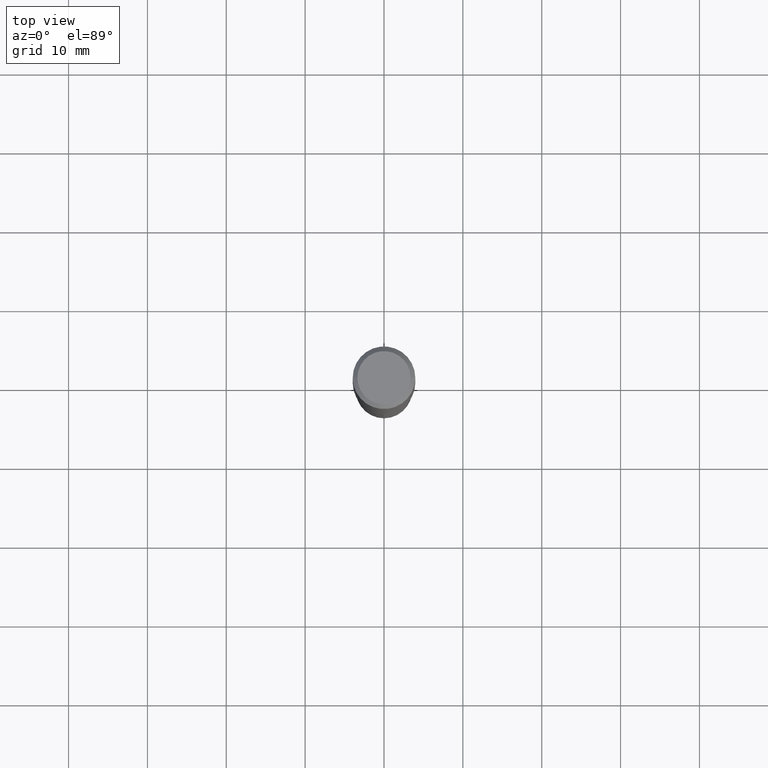
[diagram: clean part render]
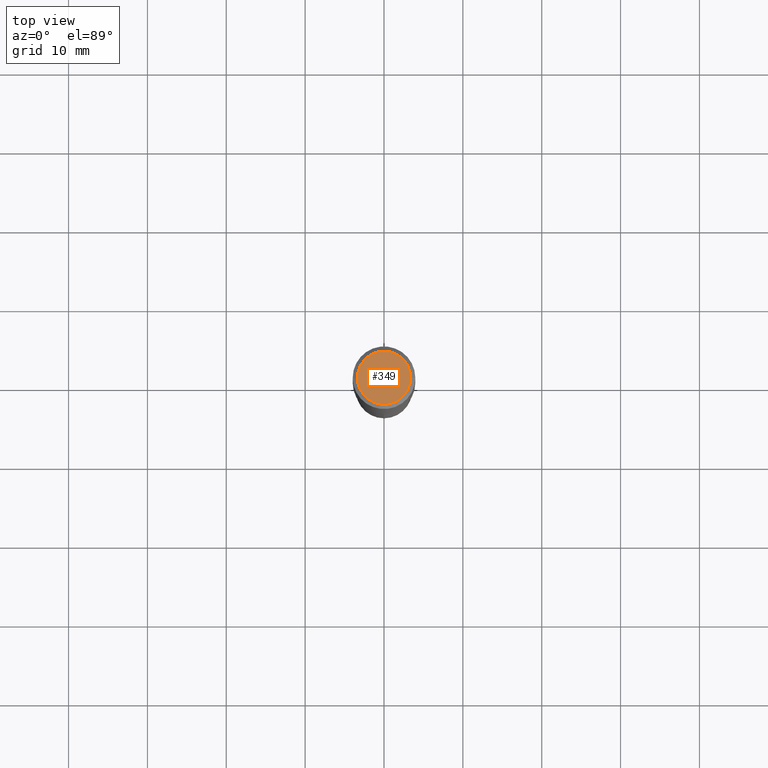
[diagram: same view with one face highlighted and labeled with its STEP entity id]
A machine part, top view. The second image highlights one B-rep face of the part: STEP entity #349.
In plain terms, the highlighted planar face has unit normal (0, -0, -1).
Its self-contained STEP definition (entity closure, byte-faithful):
#4 = CARTESIAN_POINT ( 'NONE',  ( -3.977515959410825406E-47, 5.678838639081919634E-33, 1.626484030117578921E-18 ) ) ;
#13 = EDGE_CURVE ( 'NONE', #448, #140, #337, .T. ) ;
#16 = AXIS2_PLACEMENT_3D ( 'NONE', #4, #491, #190 ) ;
#35 = DIRECTION ( 'NONE',  ( 1.000000000000000000, -6.982962677686268288E-15, 4.876286914311434227E-29 ) ) ;
#114 = PLANE ( 'NONE',  #16 ) ;
#140 = VERTEX_POINT ( 'NONE', #200 ) ;
#190 = DIRECTION ( 'NONE',  ( -1.000000000000000000, 6.982962677686265922E-15, -4.876176775795935793E-29 ) ) ;
#197 = AXIS2_PLACEMENT_3D ( 'NONE', #258, #373, #35 ) ;
#200 = CARTESIAN_POINT ( 'NONE',  ( 0.1328125000000000000, -1.032472148179985084E-15, 3.252968060242010686E-18 ) ) ;
#258 = CARTESIAN_POINT ( 'NONE',  ( -7.955031918821650812E-47, 1.135767727816383927E-32, 3.252968060235157842E-18 ) ) ;
#260 = ORIENTED_EDGE ( 'NONE', *, *, #13, .T. ) ;
#264 = DIRECTION ( 'NONE',  ( -2.445468806185136597E-29, 3.491481338843145583E-15, 1.000000000000000000 ) ) ;
#277 = EDGE_LOOP ( 'NONE', ( #260, #400 ) ) ;
#334 = FACE_OUTER_BOUND ( 'NONE', #277, .T. ) ;
#337 = CIRCLE ( 'NONE', #429, 0.1328125000000000000 ) ;
#349 = ADVANCED_FACE ( 'NONE', ( #334 ), #114, .F. ) ;
#353 = CARTESIAN_POINT ( 'NONE',  ( -0.1328125000000000000, 9.683405275697749214E-16, 3.252968060228529177E-18 ) ) ;
#373 = DIRECTION ( 'NONE',  ( -2.445468806185136597E-29, 3.491481338843145583E-15, 1.000000000000000000 ) ) ;
#378 = EDGE_CURVE ( 'NONE', #140, #448, #430, .T. ) ;
#385 = CARTESIAN_POINT ( 'NONE',  ( -7.955031918821650812E-47, 1.135767727816383927E-32, 3.252968060235157842E-18 ) ) ;
#400 = ORIENTED_EDGE ( 'NONE', *, *, #378, .T. ) ;
#429 = AXIS2_PLACEMENT_3D ( 'NONE', #385, #264, #432 ) ;
#430 = CIRCLE ( 'NONE', #197, 0.1328125000000000000 ) ;
#432 = DIRECTION ( 'NONE',  ( 1.000000000000000000, -6.982962677686268288E-15, 4.876286914311434227E-29 ) ) ;
#448 = VERTEX_POINT ( 'NONE', #353 ) ;
#491 = DIRECTION ( 'NONE',  ( 2.438088387897960049E-29, -3.491481338843145188E-15, -1.000000000000000000 ) ) ;